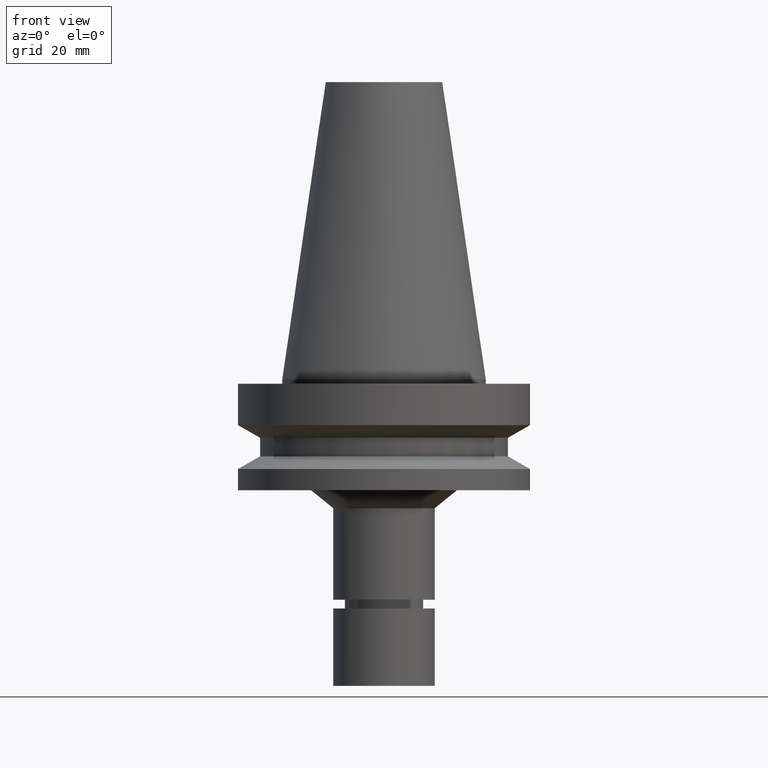
[diagram: clean part render]
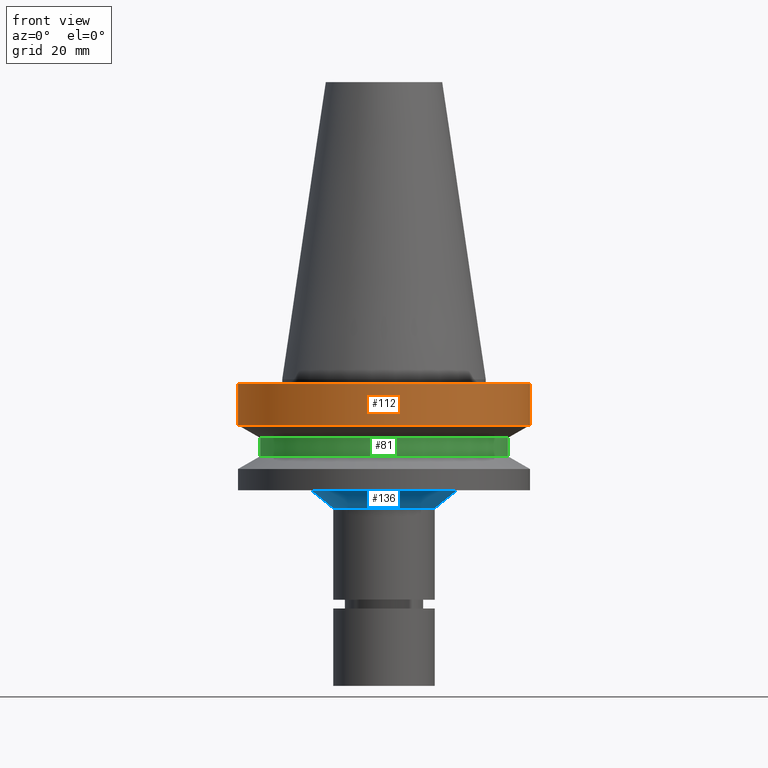
[diagram: same view with three faces highlighted in distinct colors, each labeled with its STEP entity id]
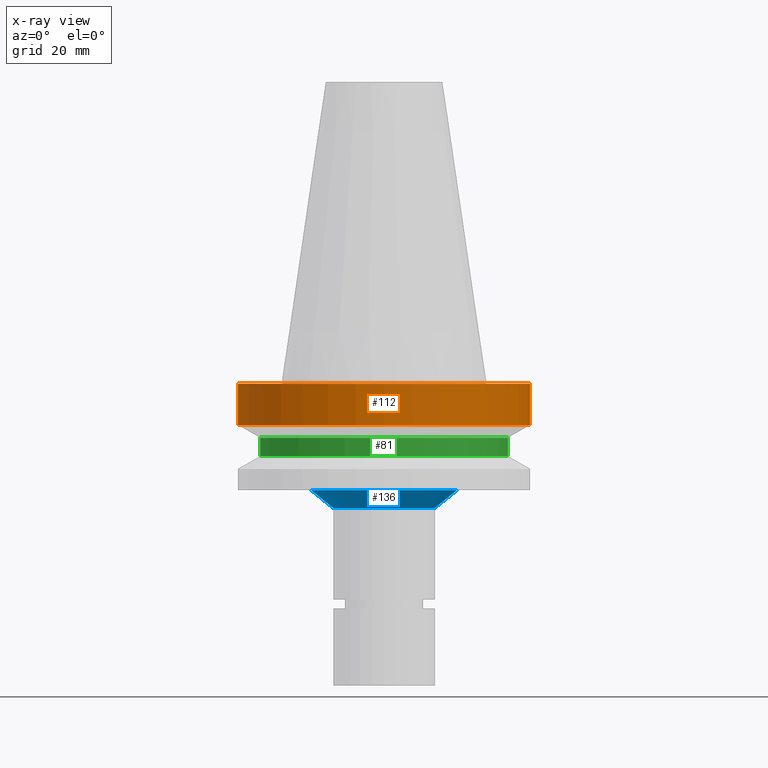
[diagram: x-ray of the same camera — body ghosted, the three highlighted faces saturated]
A machine part, front view with three faces highlighted in distinct colors.
The next image is the same camera in x-ray (body ghosted, the three faces saturated) — at least one of them is partly hidden behind the body in this view.
Their STEP definitions:

[orange] entity #112 — the highlighted cylindrical surface (bore or boss wall) has radius 50 mm, axis along (-0, 0, 1).
#109=EDGE_CURVE('Unnamed[1]',#251,#251,#252,.T.);
#112=ADVANCED_FACE('Unnamed[1]',(#255,#256),#257,.T.);
#155=EDGE_CURVE('Unnamed[1]',#325,#325,#326,.T.);
#251=VERTEX_POINT('',#440);
#252=CIRCLE('',#441,50.0);
#255=FACE_BOUND('',#445,.T.);
#256=FACE_BOUND('',#446,.T.);
#257=CYLINDRICAL_SURFACE('',#447,50.0);
#325=VERTEX_POINT('',#532);
#326=CIRCLE('',#533,50.0);
#440=CARTESIAN_POINT('',(9.61347737330674E-016,50.0,-15.7));
#441=AXIS2_PLACEMENT_3D('',#633,#634,#635);
#445=EDGE_LOOP('',(#637));
#446=EDGE_LOOP('',(#638));
#447=AXIS2_PLACEMENT_3D('',#639,#640,#641);
#532=CARTESIAN_POINT('',(9.18485099360509E-017,50.0,-1.49999999999999));
#533=AXIS2_PLACEMENT_3D('',#717,#718,#719);
#633=CARTESIAN_POINT('',(9.61347737330675E-016,1.29939598424774E-014,-15.7));
#634=DIRECTION('',(-6.12323399573677E-017,1.40684069917098E-019,1.0));
#635=DIRECTION('',(-4.81853831597521E-033,1.0,-1.40684069917098E-019));
#637=ORIENTED_EDGE('',*,*,#155,.F.);
#638=ORIENTED_EDGE('',*,*,#109,.T.);
#639=CARTESIAN_POINT('',(5.26598123633363E-016,1.2994958699374E-014,-8.60000000000002));
#640=DIRECTION('',(-6.12323399573677E-017,1.40684069917098E-019,1.0));
#641=DIRECTION('',(-4.81853831597521E-033,1.0,-1.40684069917098E-019));
#717=CARTESIAN_POINT('',(9.18485099360515E-017,1.29959575562706E-014,-1.5));
#718=DIRECTION('',(-6.12323399573677E-017,1.40684069917098E-019,1.0));
#719=DIRECTION('',(-4.81853831597521E-033,1.0,-1.40684069917098E-019));

[blue] entity #136 — the highlighted conical surface has half-angle 51.158 deg.
#125=EDGE_CURVE('Unnamed[1]',#277,#277,#278,.T.);
#136=ADVANCED_FACE('Unnamed[1]',(#294,#295),#296,.T.);
#169=EDGE_CURVE('Unnamed[1]',#345,#345,#346,.T.);
#277=VERTEX_POINT('',#472);
#278=CIRCLE('',#473,25.1435726714495);
#294=FACE_BOUND('',#493,.T.);
#295=FACE_BOUND('',#494,.T.);
#296=CONICAL_SURFACE('',#495,21.3217863357251,0.892883926160643);
#345=VERTEX_POINT('',#556);
#346=CIRCLE('',#557,17.5000000000008);
#472=CARTESIAN_POINT('',(2.32682891837996E-015,25.1435726714495,-37.9999999999999));
#473=AXIS2_PLACEMENT_3D('',#663,#664,#665);
#493=EDGE_LOOP('',(#682));
#494=EDGE_LOOP('',(#683));
#495=AXIS2_PLACEMENT_3D('',#684,#685,#686);
#556=CARTESIAN_POINT('',(2.70369652461894E-015,17.5000000000008,-44.1547150819543));
#557=AXIS2_PLACEMENT_3D('',#738,#739,#740);
#663=CARTESIAN_POINT('',(2.32682891837996E-015,1.29908225877178E-014,-37.9999999999999));
#664=DIRECTION('',(-6.12323399573677E-017,1.40684069951708E-019,1.0));
#665=DIRECTION('',(-4.81853831597378E-033,1.0,-1.40684069951708E-019));
#682=ORIENTED_EDGE('',*,*,#125,.F.);
#683=ORIENTED_EDGE('',*,*,#169,.T.);
#684=CARTESIAN_POINT('',(2.51526272149945E-015,1.29903896525343E-014,-41.0773575409771));
#685=DIRECTION('',(-6.12323399573677E-017,1.40684069952657E-019,1.0));
#686=DIRECTION('',(-4.81853831597049E-033,1.0,-1.40684069952657E-019));
#738=CARTESIAN_POINT('',(2.70369652461894E-015,1.29899567173507E-014,-44.1547150819543));
#739=DIRECTION('',(-6.12323399573677E-017,1.4068406995402E-019,1.0));
#740=DIRECTION('',(-4.8185383159709E-033,1.0,-1.4068406995402E-019));

[green] entity #81 — the highlighted cylindrical surface (bore or boss wall) has radius 42.5 mm, axis along (-0, 0, 1).
#75=EDGE_CURVE('Unnamed[1]',#201,#201,#202,.T.);
#81=ADVANCED_FACE('Unnamed[1]',(#210,#211),#212,.T.);
#140=EDGE_CURVE('Unnamed[1]',#301,#301,#302,.T.);
#201=VERTEX_POINT('',#377);
#202=CIRCLE('',#378,42.5);
#210=FACE_BOUND('',#388,.T.);
#211=FACE_BOUND('',#389,.T.);
#212=CYLINDRICAL_SURFACE('',#390,42.5);
#301=VERTEX_POINT('',#502);
#302=CIRCLE('',#503,42.5);
#377=CARTESIAN_POINT('',(1.2264915470779E-015,42.5,-20.03012702));
#378=AXIS2_PLACEMENT_3D('',#580,#581,#582);
#388=EDGE_LOOP('',(#590));
#389=EDGE_LOOP('',(#591));
#390=AXIS2_PLACEMENT_3D('',#592,#593,#594);
#502=CARTESIAN_POINT('',(1.61468902694397E-015,42.5,-26.3698729800001));
#503=AXIS2_PLACEMENT_3D('',#690,#691,#692);
#580=CARTESIAN_POINT('',(1.2264915470779E-015,1.29933506625849E-014,-20.03012702));
#581=DIRECTION('',(-6.12323399573677E-017,1.40684069970318E-019,1.0));
#582=DIRECTION('',(-4.81853831596719E-033,1.0,-1.40684069970318E-019));
#590=ORIENTED_EDGE('',*,*,#75,.F.);
#591=ORIENTED_EDGE('',*,*,#140,.T.);
#592=CARTESIAN_POINT('',(1.42059028701093E-015,1.29929047119529E-014,-23.2));
#593=DIRECTION('',(-6.12323399573677E-017,1.40684069970318E-019,1.0));
#594=DIRECTION('',(-4.81853831596719E-033,1.0,-1.40684069970318E-019));
#690=CARTESIAN_POINT('',(1.61468902694397E-015,1.29924587613209E-014,-26.3698729800001));
#691=DIRECTION('',(-6.12323399573677E-017,1.40684069970318E-019,1.0));
#692=DIRECTION('',(-4.81853831596719E-033,1.0,-1.40684069970318E-019));